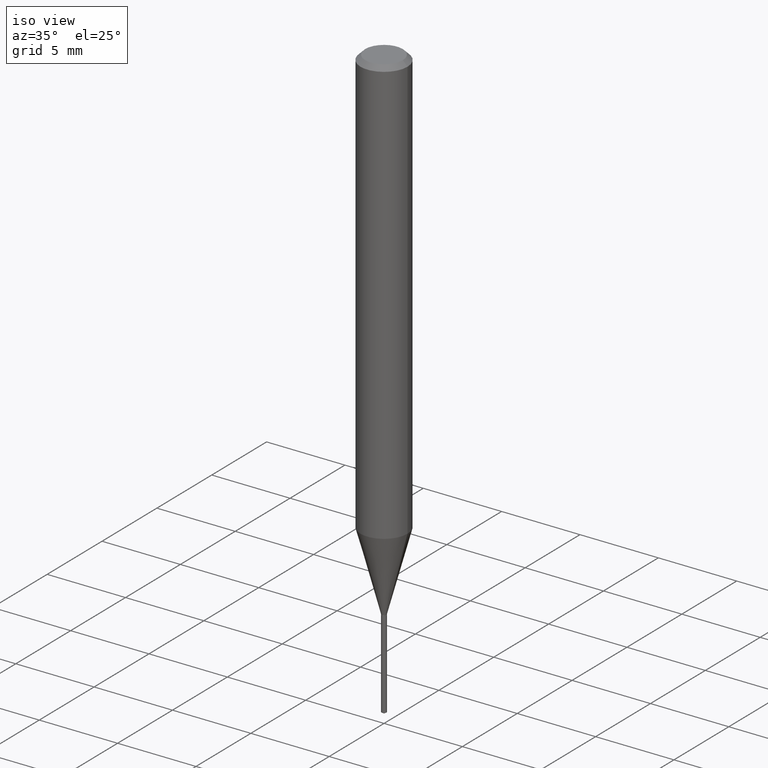
[diagram: clean part render]
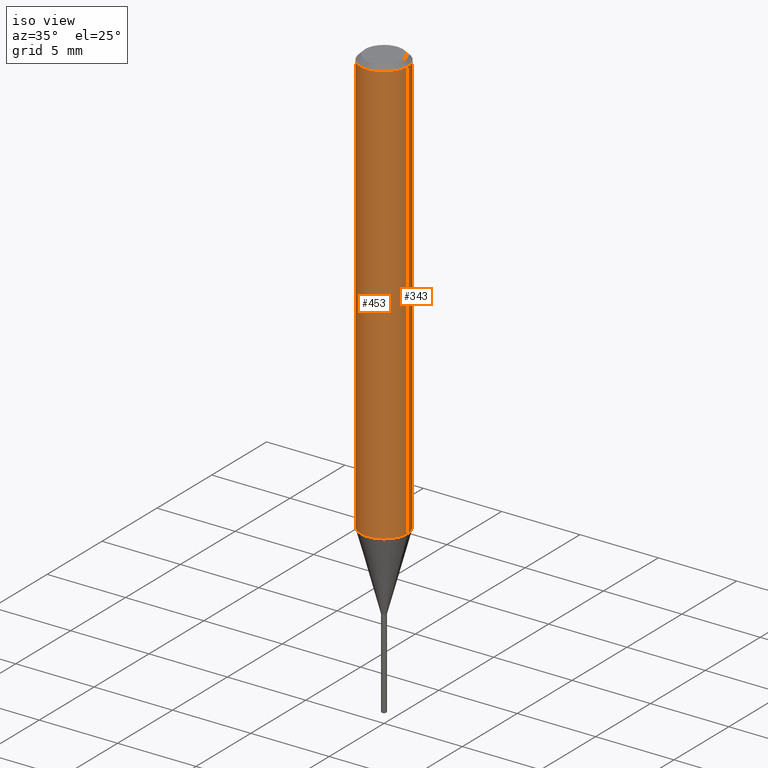
[diagram: same view with one multi-face feature highlighted, each face labeled with its STEP entity id]
A machine part, iso view. The highlighted faces form ONE feature: a constant-radius fillet chain: 2 tangent blend faces with common blend radius 1.4999 mm. The faces share edges in the B-rep.
Their STEP definitions:
[1] entity #343 (Cylinder):
#7 = EDGE_CURVE ( 'NONE', #81, #438, #35, .T. ) ;
#9 = DIRECTION ( 'NONE',  ( 1.000000000000000000, -6.982962677686266711E-15, 4.876176775795936353E-29 ) ) ;
#10 = VECTOR ( 'NONE', #48, 39.37007874015748143 ) ;
#12 = FACE_OUTER_BOUND ( 'NONE', #88, .T. ) ;
#23 = ORIENTED_EDGE ( 'NONE', *, *, #441, .T. ) ;
#35 = LINE ( 'NONE', #170, #134 ) ;
#48 = DIRECTION ( 'NONE',  ( -2.445468806185136877E-29, 3.491481338843145188E-15, 1.000000000000000000 ) ) ;
#77 = EDGE_CURVE ( 'NONE', #93, #438, #151, .T. ) ;
#81 = VERTEX_POINT ( 'NONE', #143 ) ;
#83 = ORIENTED_EDGE ( 'NONE', *, *, #272, .F. ) ;
#88 = EDGE_LOOP ( 'NONE', ( #23, #128, #466, #83 ) ) ;
#93 = VERTEX_POINT ( 'NONE', #288 ) ;
#109 = CYLINDRICAL_SURFACE ( 'NONE', #296, 0.05905000000000006771 ) ;
#113 = VERTEX_POINT ( 'NONE', #243 ) ;
#128 = ORIENTED_EDGE ( 'NONE', *, *, #7, .T. ) ;
#134 = VECTOR ( 'NONE', #140, 39.37007874015748143 ) ;
#137 = DIRECTION ( 'NONE',  ( -2.445468806185136597E-29, 3.491481338843145583E-15, 1.000000000000000000 ) ) ;
#138 = DIRECTION ( 'NONE',  ( -2.445468806185136597E-29, 3.491481338843145583E-15, 1.000000000000000000 ) ) ;
#140 = DIRECTION ( 'NONE',  ( -2.445468806185136877E-29, 3.491481338843145188E-15, 1.000000000000000000 ) ) ;
#143 = CARTESIAN_POINT ( 'NONE',  ( -0.05905000000000013710, -3.324297741255297411E-15, -1.072287909739227940 ) ) ;
#151 = CIRCLE ( 'NONE', #210, 0.05904999999999999832 ) ;
#170 = CARTESIAN_POINT ( 'NONE',  ( -0.05905000000000006771, 4.195754854663396409E-16, -2.904631170795525045E-30 ) ) ;
#173 = CARTESIAN_POINT ( 'NONE',  ( 2.888098660104663766E-31, -4.123439461173779647E-17, -0.01181000000000007044 ) ) ;
#175 = DIRECTION ( 'NONE',  ( 1.000000000000000000, -6.982962677686266711E-15, 0.000000000000000000 ) ) ;
#188 = AXIS2_PLACEMENT_3D ( 'NONE', #199, #137, #281 ) ;
#199 = CARTESIAN_POINT ( 'NONE',  ( 2.622246634516745589E-29, -3.743873226721637693E-15, -1.072287909739227940 ) ) ;
#210 = AXIS2_PLACEMENT_3D ( 'NONE', #173, #138, #175 ) ;
#234 = LINE ( 'NONE', #486, #10 ) ;
#243 = CARTESIAN_POINT ( 'NONE',  ( 0.05905000000000013710, -4.156217172839012613E-15, -1.072287909739227940 ) ) ;
#254 = CARTESIAN_POINT ( 'NONE',  ( 0.000000000000000000, 0.000000000000000000, 0.000000000000000000 ) ) ;
#272 = EDGE_CURVE ( 'NONE', #113, #93, #234, .T. ) ;
#281 = DIRECTION ( 'NONE',  ( 1.000000000000000000, -6.982962677686264344E-15, 0.000000000000000000 ) ) ;
#288 = CARTESIAN_POINT ( 'NONE',  ( 0.05904999999999999832, -4.535783407291118600E-16, -0.01181000000000007044 ) ) ;
#296 = AXIS2_PLACEMENT_3D ( 'NONE', #254, #459, #9 ) ;
#312 = CARTESIAN_POINT ( 'NONE',  ( -0.05904999999999999832, -1.472978325200347232E-15, -0.01181000000000007044 ) ) ;
#343 = ADVANCED_FACE ( 'NONE', ( #12 ), #109, .T. ) ;
#409 = CIRCLE ( 'NONE', #188, 0.05905000000000013710 ) ;
#438 = VERTEX_POINT ( 'NONE', #312 ) ;
#441 = EDGE_CURVE ( 'NONE', #113, #81, #409, .T. ) ;
#459 = DIRECTION ( 'NONE',  ( -2.445468806185136597E-29, 3.491481338843145583E-15, 1.000000000000000000 ) ) ;
#466 = ORIENTED_EDGE ( 'NONE', *, *, #77, .F. ) ;
#486 = CARTESIAN_POINT ( 'NONE',  ( 0.05905000000000006771, -4.123439461173745257E-16, 2.879382386107503723E-30 ) ) ;
[2] entity #453 (Cylinder):
#2 = ORIENTED_EDGE ( 'NONE', *, *, #7, .F. ) ;
#7 = EDGE_CURVE ( 'NONE', #81, #438, #35, .T. ) ;
#10 = VECTOR ( 'NONE', #48, 39.37007874015748143 ) ;
#13 = ORIENTED_EDGE ( 'NONE', *, *, #189, .F. ) ;
#15 = ORIENTED_EDGE ( 'NONE', *, *, #272, .T. ) ;
#29 = AXIS2_PLACEMENT_3D ( 'NONE', #264, #345, #223 ) ;
#32 = DIRECTION ( 'NONE',  ( -2.445468806185136597E-29, 3.491481338843145583E-15, 1.000000000000000000 ) ) ;
#35 = LINE ( 'NONE', #170, #134 ) ;
#48 = DIRECTION ( 'NONE',  ( -2.445468806185136877E-29, 3.491481338843145188E-15, 1.000000000000000000 ) ) ;
#81 = VERTEX_POINT ( 'NONE', #143 ) ;
#93 = VERTEX_POINT ( 'NONE', #288 ) ;
#100 = CYLINDRICAL_SURFACE ( 'NONE', #126, 0.05905000000000006771 ) ;
#113 = VERTEX_POINT ( 'NONE', #243 ) ;
#126 = AXIS2_PLACEMENT_3D ( 'NONE', #247, #197, #357 ) ;
#134 = VECTOR ( 'NONE', #140, 39.37007874015748143 ) ;
#140 = DIRECTION ( 'NONE',  ( -2.445468806185136877E-29, 3.491481338843145188E-15, 1.000000000000000000 ) ) ;
#143 = CARTESIAN_POINT ( 'NONE',  ( -0.05905000000000013710, -3.324297741255297411E-15, -1.072287909739227940 ) ) ;
#170 = CARTESIAN_POINT ( 'NONE',  ( -0.05905000000000006771, 4.195754854663396409E-16, -2.904631170795525045E-30 ) ) ;
#189 = EDGE_CURVE ( 'NONE', #438, #93, #269, .T. ) ;
#197 = DIRECTION ( 'NONE',  ( -2.445468806185136597E-29, 3.491481338843145583E-15, 1.000000000000000000 ) ) ;
#211 = CIRCLE ( 'NONE', #29, 0.05905000000000013710 ) ;
#223 = DIRECTION ( 'NONE',  ( 1.000000000000000000, -6.982962677686264344E-15, 0.000000000000000000 ) ) ;
#225 = AXIS2_PLACEMENT_3D ( 'NONE', #398, #32, #378 ) ;
#234 = LINE ( 'NONE', #486, #10 ) ;
#242 = FACE_OUTER_BOUND ( 'NONE', #413, .T. ) ;
#243 = CARTESIAN_POINT ( 'NONE',  ( 0.05905000000000013710, -4.156217172839012613E-15, -1.072287909739227940 ) ) ;
#247 = CARTESIAN_POINT ( 'NONE',  ( 0.000000000000000000, 0.000000000000000000, 0.000000000000000000 ) ) ;
#264 = CARTESIAN_POINT ( 'NONE',  ( 2.622246634516745589E-29, -3.743873226721637693E-15, -1.072287909739227940 ) ) ;
#269 = CIRCLE ( 'NONE', #225, 0.05904999999999999832 ) ;
#272 = EDGE_CURVE ( 'NONE', #113, #93, #234, .T. ) ;
#288 = CARTESIAN_POINT ( 'NONE',  ( 0.05904999999999999832, -4.535783407291118600E-16, -0.01181000000000007044 ) ) ;
#299 = EDGE_CURVE ( 'NONE', #81, #113, #211, .T. ) ;
#312 = CARTESIAN_POINT ( 'NONE',  ( -0.05904999999999999832, -1.472978325200347232E-15, -0.01181000000000007044 ) ) ;
#345 = DIRECTION ( 'NONE',  ( -2.445468806185136597E-29, 3.491481338843145583E-15, 1.000000000000000000 ) ) ;
#357 = DIRECTION ( 'NONE',  ( 1.000000000000000000, -6.982962677686266711E-15, 4.876176775795936353E-29 ) ) ;
#378 = DIRECTION ( 'NONE',  ( 1.000000000000000000, -6.982962677686266711E-15, 0.000000000000000000 ) ) ;
#398 = CARTESIAN_POINT ( 'NONE',  ( 2.888098660104663766E-31, -4.123439461173779647E-17, -0.01181000000000007044 ) ) ;
#413 = EDGE_LOOP ( 'NONE', ( #2, #460, #15, #13 ) ) ;
#438 = VERTEX_POINT ( 'NONE', #312 ) ;
#453 = ADVANCED_FACE ( 'NONE', ( #242 ), #100, .T. ) ;
#460 = ORIENTED_EDGE ( 'NONE', *, *, #299, .T. ) ;
#486 = CARTESIAN_POINT ( 'NONE',  ( 0.05905000000000006771, -4.123439461173745257E-16, 2.879382386107503723E-30 ) ) ;